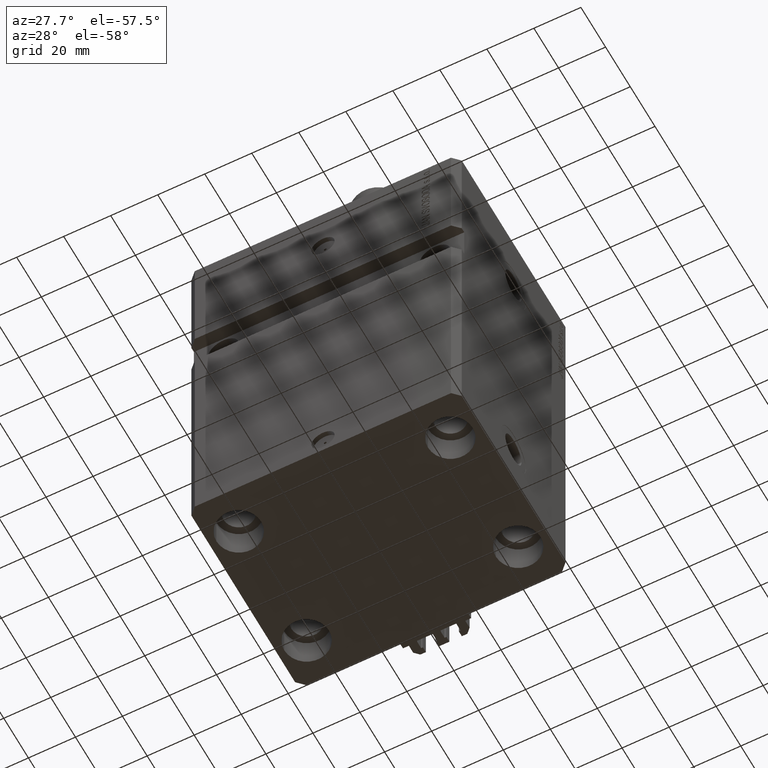
[diagram: clean part render]
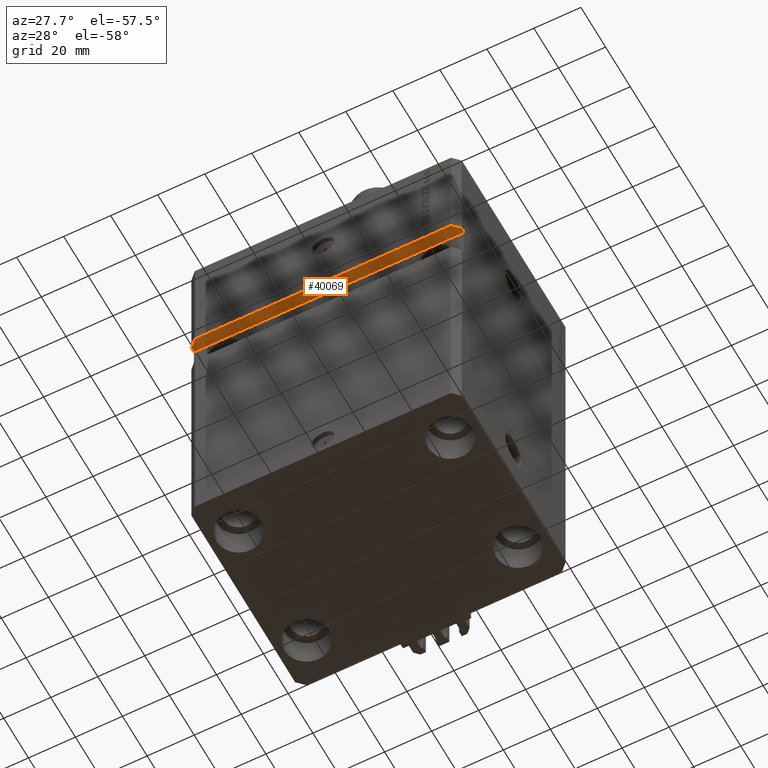
[diagram: same view with one face highlighted and labeled with its STEP entity id]
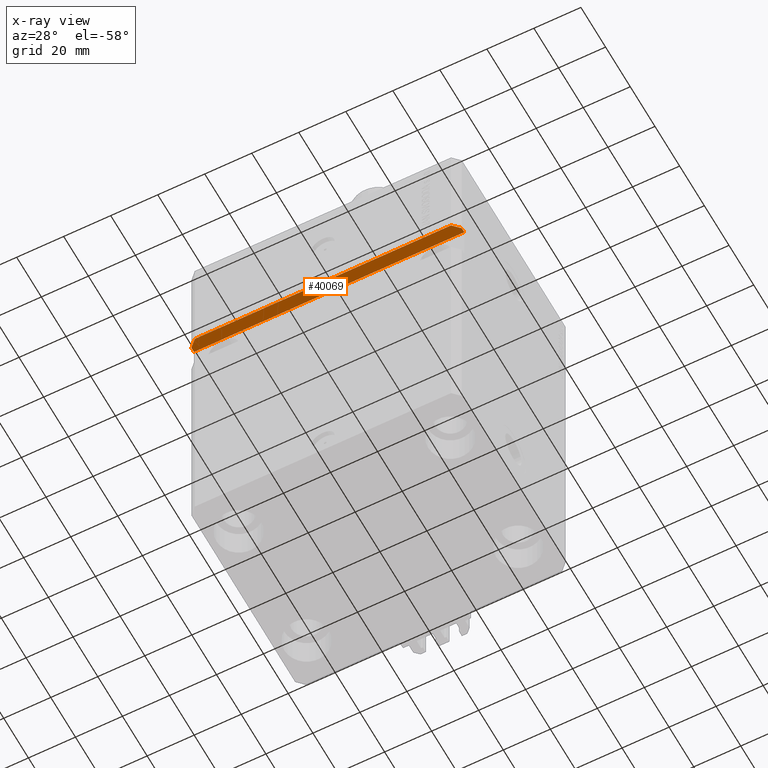
[diagram: x-ray of the same camera — body ghosted, the highlighted face saturated]
A machine part, auxiliary view. The second image highlights one B-rep face of the part: STEP entity #40069.
The next image is the same camera in x-ray: the body ghosted, the highlighted face saturated — about 0% of this face is hidden behind the body in this view.
In plain terms, the highlighted planar face has unit normal (-0, -0, 1).
Its self-contained STEP definition (entity closure, byte-faithful):
#1958 = VECTOR ( 'NONE', #19280, 1000.000000000000000 ) ;
#3229 = LINE ( 'NONE', #43092, #42297 ) ;
#3595 = CARTESIAN_POINT ( 'NONE',  ( 57.50000000000000711, -39.99999999999998579, -47.49999999999998579 ) ) ;
#3852 = PLANE ( 'NONE',  #3897 ) ;
#3890 = VERTEX_POINT ( 'NONE', #34156 ) ;
#3897 = AXIS2_PLACEMENT_3D ( 'NONE', #3595, #19262, #15423 ) ;
#4258 = VERTEX_POINT ( 'NONE', #8792 ) ;
#5555 = ORIENTED_EDGE ( 'NONE', *, *, #12939, .F. ) ;
#8362 = ORIENTED_EDGE ( 'NONE', *, *, #45853, .T. ) ;
#8792 = CARTESIAN_POINT ( 'NONE',  ( -54.50000000000000711, -45.00000000000000000, -47.49999999999998579 ) ) ;
#9236 = CARTESIAN_POINT ( 'NONE',  ( -57.50000000000002132, -41.99999999999999289, -47.50000000000001421 ) ) ;
#9703 = LINE ( 'NONE', #10197, #26569 ) ;
#9804 = CARTESIAN_POINT ( 'NONE',  ( 57.50000000000000711, -39.99999999999998579, -47.49999999999998579 ) ) ;
#9826 = EDGE_CURVE ( 'NONE', #3890, #29393, #30868, .T. ) ;
#10022 = ORIENTED_EDGE ( 'NONE', *, *, #29362, .T. ) ;
#10197 = CARTESIAN_POINT ( 'NONE',  ( -57.50000000000002132, -41.99999999999999289, -47.50000000000001421 ) ) ;
#10738 = ORIENTED_EDGE ( 'NONE', *, *, #42120, .F. ) ;
#10893 = LINE ( 'NONE', #26571, #46328 ) ;
#11798 = VECTOR ( 'NONE', #18027, 1000.000000000000000 ) ;
#12939 = EDGE_CURVE ( 'NONE', #45484, #28290, #3229, .T. ) ;
#14510 = DIRECTION ( 'NONE',  ( 1.176083712526788232E-16, -1.000000000000000000, -0.000000000000000000 ) ) ;
#15132 = CARTESIAN_POINT ( 'NONE',  ( 57.50000000000000711, -44.99999999999998579, -47.49999999999998579 ) ) ;
#15423 = DIRECTION ( 'NONE',  ( 1.000000000000000000, 0.000000000000000000, 1.810146235801885321E-16 ) ) ;
#16620 = CARTESIAN_POINT ( 'NONE',  ( -57.50000000000002132, -40.00000000000000000, -47.50000000000000711 ) ) ;
#17614 = EDGE_LOOP ( 'NONE', ( #42188, #8362, #40496, #5555, #10738, #10022 ) ) ;
#18027 = DIRECTION ( 'NONE',  ( -1.000000000000000000, -1.206764157201257045E-16, -1.810146235801885321E-16 ) ) ;
#19262 = DIRECTION ( 'NONE',  ( -1.810146235801885321E-16, -2.128883505218272318E-32, 1.000000000000000000 ) ) ;
#19280 = DIRECTION ( 'NONE',  ( -0.7071067811865483499, -0.7071067811865466846, -1.279966678274818172E-16 ) ) ;
#23648 = CARTESIAN_POINT ( 'NONE',  ( 54.49999999999999289, -45.00000000000000000, -47.49999999999998579 ) ) ;
#26569 = VECTOR ( 'NONE', #41364, 1000.000000000000227 ) ;
#26571 = CARTESIAN_POINT ( 'NONE',  ( 57.50000000000000711, -39.99999999999998579, -47.49999999999998579 ) ) ;
#28290 = VERTEX_POINT ( 'NONE', #9236 ) ;
#28896 = EDGE_CURVE ( 'NONE', #4258, #28290, #9703, .T. ) ;
#29009 = VERTEX_POINT ( 'NONE', #50060 ) ;
#29362 = EDGE_CURVE ( 'NONE', #29009, #3890, #10893, .T. ) ;
#29393 = VERTEX_POINT ( 'NONE', #30202 ) ;
#30202 = CARTESIAN_POINT ( 'NONE',  ( 54.50000000000000711, -44.99999999999998579, -47.49999999999998579 ) ) ;
#30868 = LINE ( 'NONE', #23648, #1958 ) ;
#31354 = FACE_OUTER_BOUND ( 'NONE', #17614, .T. ) ;
#33224 = VECTOR ( 'NONE', #39840, 1000.000000000000000 ) ;
#34156 = CARTESIAN_POINT ( 'NONE',  ( 57.50000000000000711, -41.99999999999998579, -47.49999999999998579 ) ) ;
#39575 = LINE ( 'NONE', #15132, #33224 ) ;
#39840 = DIRECTION ( 'NONE',  ( -1.000000000000000000, -1.206764157201257045E-16, -1.810146235801885321E-16 ) ) ;
#40069 = ADVANCED_FACE ( 'NONE', ( #31354 ), #3852, .F. ) ;
#40464 = LINE ( 'NONE', #9804, #11798 ) ;
#40496 = ORIENTED_EDGE ( 'NONE', *, *, #28896, .T. ) ;
#40517 = DIRECTION ( 'NONE',  ( 1.176083712526788232E-16, -1.000000000000000000, -0.000000000000000000 ) ) ;
#41364 = DIRECTION ( 'NONE',  ( -0.7071067811865492381, 0.7071067811865457964, -1.279966678274818912E-16 ) ) ;
#42120 = EDGE_CURVE ( 'NONE', #29009, #45484, #40464, .T. ) ;
#42188 = ORIENTED_EDGE ( 'NONE', *, *, #9826, .T. ) ;
#42297 = VECTOR ( 'NONE', #40517, 1000.000000000000000 ) ;
#43092 = CARTESIAN_POINT ( 'NONE',  ( -57.50000000000002132, -40.00000000000000000, -47.50000000000000711 ) ) ;
#45484 = VERTEX_POINT ( 'NONE', #16620 ) ;
#45853 = EDGE_CURVE ( 'NONE', #29393, #4258, #39575, .T. ) ;
#46328 = VECTOR ( 'NONE', #14510, 1000.000000000000000 ) ;
#50060 = CARTESIAN_POINT ( 'NONE',  ( 57.50000000000000711, -39.99999999999998579, -47.49999999999998579 ) ) ;